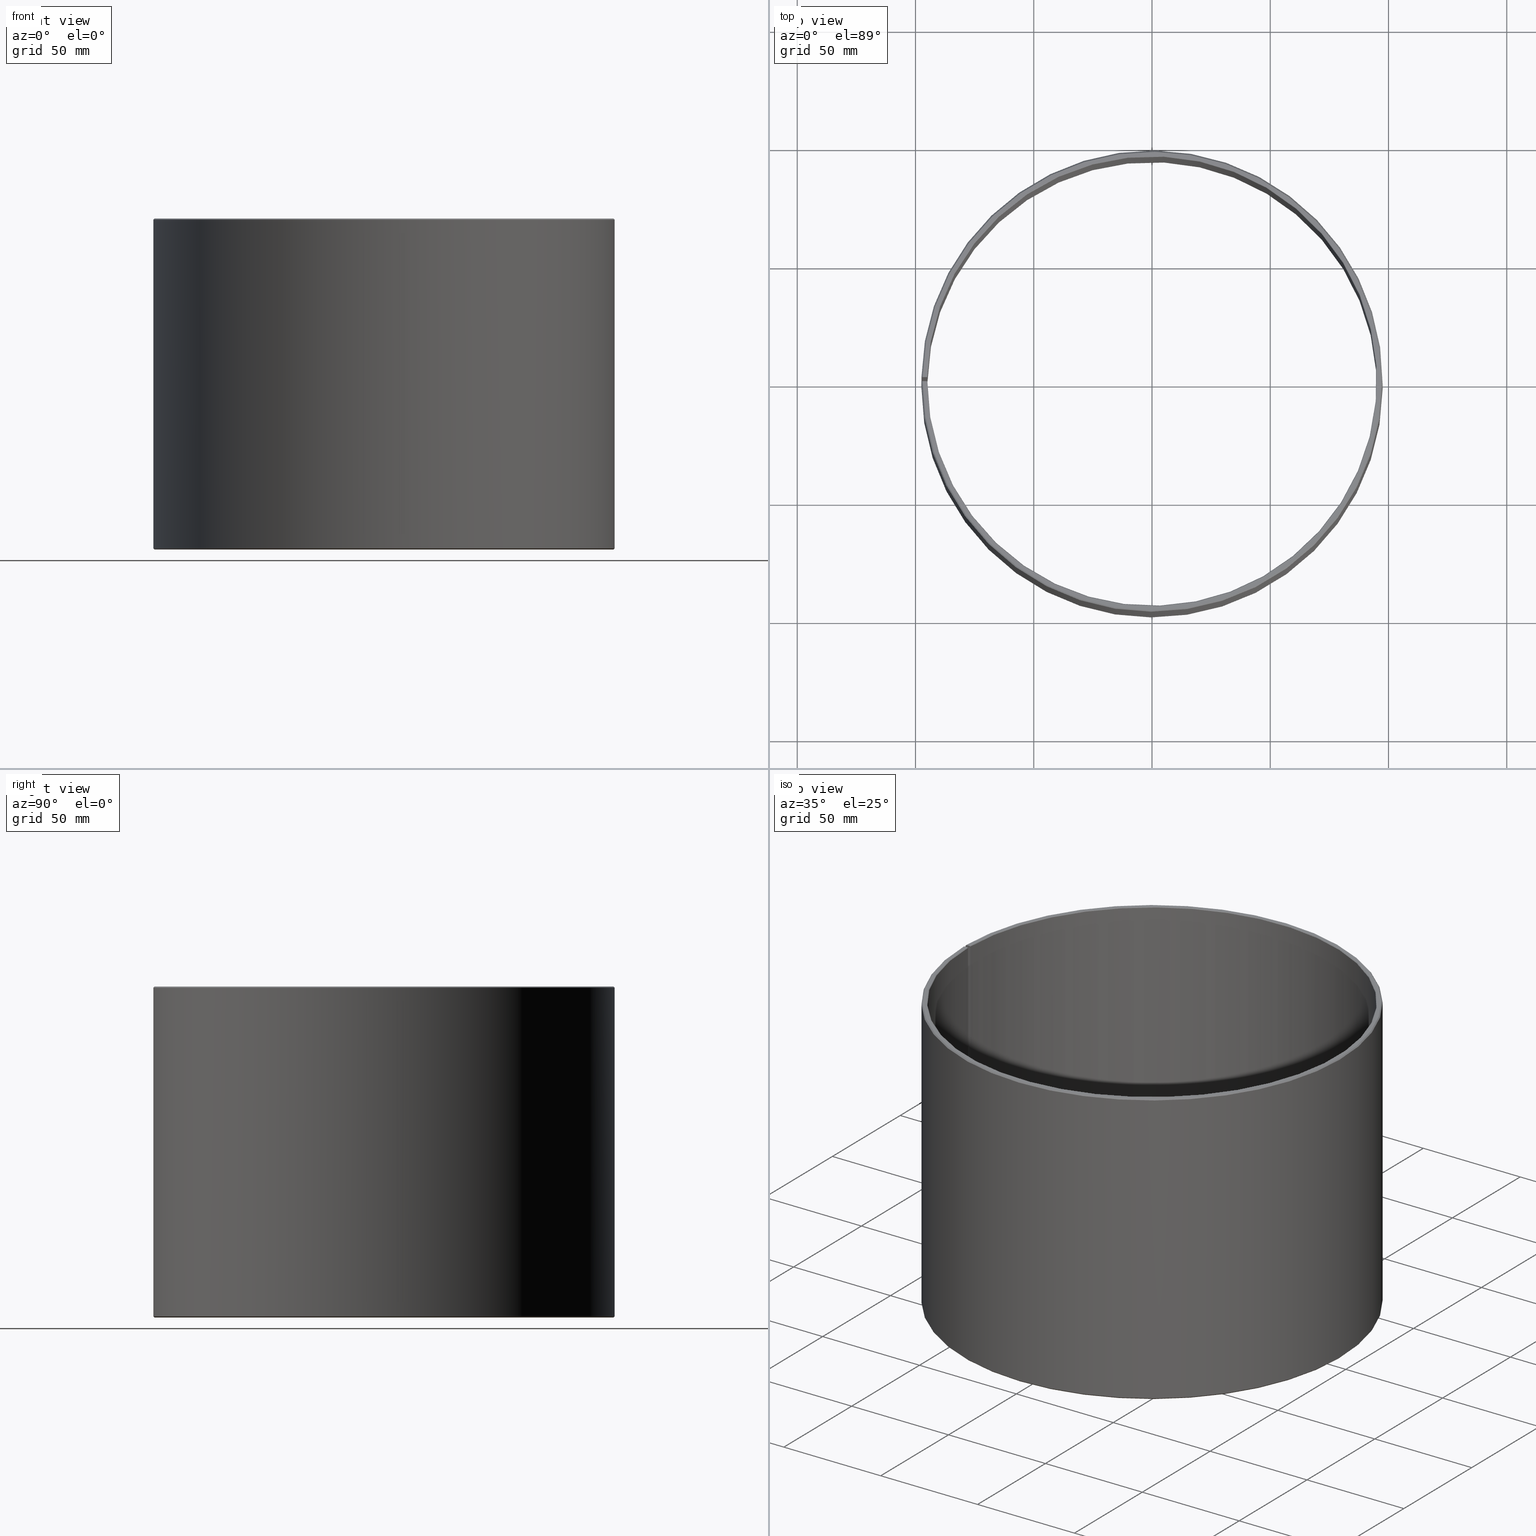
[diagram: canonical four-view strip — front | top / right | iso, engineering-drawing reading convention]
A machine part, canonical four-view strip (front | top / right | iso — engineering-drawing reading convention). The complete STEP part file that produces these views, byte-faithful:
ISO-10303-21;
HEADER;
FILE_DESCRIPTION(('STEP AP203'),'1');
FILE_NAME('470-FB090-190140.stp','2016-09-21T09:22:43',(' '),(' '),'Spatial InterOp 3D',' ',' ');
FILE_SCHEMA(('CONFIG_CONTROL_DESIGN'));
ENDSEC;
DATA;
#1=DESIGN_CONTEXT('',#51,'design');
#2=APPLICATION_PROTOCOL_DEFINITION('INTERNATIONAL STANDARD','config_control_design',1994,#51);
#3=PRODUCT_CATEGORY_RELATIONSHIP('NONE','NONE',#52,#53);
#4=DATE_AND_TIME(#54,#55);
#5=DATE_TIME_ROLE('creation_date');
#6=DATE_TIME_ROLE('classification_date');
#7=PERSON_AND_ORGANIZATION_ROLE('creator');
#8=PERSON_AND_ORGANIZATION_ROLE('design_supplier');
#9=PERSON_AND_ORGANIZATION_ROLE('classification_officer');
#10=PERSON_AND_ORGANIZATION_ROLE('design_owner');
#11=APPROVAL_PERSON_ORGANIZATION(#56,#57,#58);
#12=APPROVAL_DATE_TIME(#4,#57);
#13=CC_DESIGN_APPROVAL(#57,(#59,#60,#61));
#14=CC_DESIGN_DATE_AND_TIME_ASSIGNMENT(#4,#5,(#61));
#15=CC_DESIGN_DATE_AND_TIME_ASSIGNMENT(#4,#6,(#59));
#16=CC_DESIGN_PERSON_AND_ORGANIZATION_ASSIGNMENT(#56,#10,(#62));
#17=CC_DESIGN_PERSON_AND_ORGANIZATION_ASSIGNMENT(#56,#7,(#61));
#18=CC_DESIGN_PERSON_AND_ORGANIZATION_ASSIGNMENT(#56,#7,(#60));
#19=CC_DESIGN_PERSON_AND_ORGANIZATION_ASSIGNMENT(#56,#8,(#60));
#20=CC_DESIGN_SECURITY_CLASSIFICATION(#59,(#60));
#21=CC_DESIGN_PERSON_AND_ORGANIZATION_ASSIGNMENT(#56,#9,(#59));
#22=SHAPE_DEFINITION_REPRESENTATION(#63,#64);
#23=DESIGN_CONTEXT('',#65,'design');
#24=APPLICATION_PROTOCOL_DEFINITION('INTERNATIONAL STANDARD','config_control_design',1994,#65);
#25=PRODUCT_CATEGORY_RELATIONSHIP('NONE','NONE',#66,#67);
#26=DATE_AND_TIME(#68,#69);
#27=DATE_TIME_ROLE('creation_date');
#28=DATE_TIME_ROLE('classification_date');
#29=PERSON_AND_ORGANIZATION_ROLE('creator');
#30=PERSON_AND_ORGANIZATION_ROLE('design_supplier');
#31=PERSON_AND_ORGANIZATION_ROLE('classification_officer');
#32=PERSON_AND_ORGANIZATION_ROLE('design_owner');
#33=APPROVAL_PERSON_ORGANIZATION(#70,#71,#72);
#34=APPROVAL_DATE_TIME(#26,#71);
#35=CC_DESIGN_APPROVAL(#71,(#73,#74,#75));
#36=CC_DESIGN_DATE_AND_TIME_ASSIGNMENT(#26,#27,(#75));
#37=CC_DESIGN_DATE_AND_TIME_ASSIGNMENT(#26,#28,(#73));
#38=CC_DESIGN_PERSON_AND_ORGANIZATION_ASSIGNMENT(#70,#32,(#76));
#39=CC_DESIGN_PERSON_AND_ORGANIZATION_ASSIGNMENT(#70,#29,(#75));
#40=CC_DESIGN_PERSON_AND_ORGANIZATION_ASSIGNMENT(#70,#29,(#74));
#41=CC_DESIGN_PERSON_AND_ORGANIZATION_ASSIGNMENT(#70,#30,(#74));
#42=CC_DESIGN_SECURITY_CLASSIFICATION(#73,(#74));
#43=CC_DESIGN_PERSON_AND_ORGANIZATION_ASSIGNMENT(#70,#31,(#73));
#44=CONTEXT_DEPENDENT_SHAPE_REPRESENTATION(#77,#78);
#45=SHAPE_DEFINITION_REPRESENTATION(#79,#80);
#46=SHAPE_REPRESENTATION_RELATIONSHIP('NONE','NONE',#80,#81);
#47= (GEOMETRIC_REPRESENTATION_CONTEXT(3)GLOBAL_UNCERTAINTY_ASSIGNED_CONTEXT((#84))GLOBAL_UNIT_ASSIGNED_CONTEXT((#86,#87,#88))REPRESENTATION_CONTEXT('NONE','WORKSPACE'));
#51=APPLICATION_CONTEXT('CONFIGURATION CONTROLLED 3D DESIGNS OF MECHANICAL PARTS AND ASSEMBLIES');
#52=PRODUCT_CATEGORY('part','NONE');
#53=PRODUCT_RELATED_PRODUCT_CATEGORY('detail',' ',(#62));
#54=CALENDAR_DATE(2016,21,8);
#55=LOCAL_TIME(11,22,43.0,#90);
#56=PERSON_AND_ORGANIZATION(#91,#92);
#57=APPROVAL(#93,'SOLID MODEL');
#58=APPROVAL_ROLE('APPROVED');
#59=SECURITY_CLASSIFICATION('','',#94);
#60=PRODUCT_DEFINITION_FORMATION_WITH_SPECIFIED_SOURCE(' ','NONE',#62,.NOT_KNOWN.);
#61=PRODUCT_DEFINITION('NONE','NONE',#60,#1);
#62=PRODUCT('','','PART--DESC',(#95));
#63=PRODUCT_DEFINITION_SHAPE('NONE','NONE',#61);
#64=SHAPE_REPRESENTATION('',(#96,#97),#98);
#65=APPLICATION_CONTEXT('CONFIGURATION CONTROLLED 3D DESIGNS OF MECHANICAL PARTS AND ASSEMBLIES');
#66=PRODUCT_CATEGORY('part','NONE');
#67=PRODUCT_RELATED_PRODUCT_CATEGORY('detail',' ',(#76));
#68=CALENDAR_DATE(2016,21,8);
#69=LOCAL_TIME(11,22,43.0,#99);
#70=PERSON_AND_ORGANIZATION(#100,#101);
#71=APPROVAL(#102,'SOLID MODEL');
#72=APPROVAL_ROLE('APPROVED');
#73=SECURITY_CLASSIFICATION('','',#103);
#74=PRODUCT_DEFINITION_FORMATION_WITH_SPECIFIED_SOURCE(' ','NONE',#76,.NOT_KNOWN.);
#75=PRODUCT_DEFINITION('470-FB090-190140','470-FB090-190140',#74,#23);
#76=PRODUCT('470-FB090-190140','470-FB090-190140','PART-470-FB090-190140-DESC',(#104));
#77=(REPRESENTATION_RELATIONSHIP('','',#80,#64)REPRESENTATION_RELATIONSHIP_WITH_TRANSFORMATION(#107)SHAPE_REPRESENTATION_RELATIONSHIP());
#78=PRODUCT_DEFINITION_SHAPE('NAUO-PROD-DEF','NAUO-PROD-DEF',#109);
#79=PRODUCT_DEFINITION_SHAPE('NONE','NONE',#75);
#80=SHAPE_REPRESENTATION('470-FB090-190140',(#96),#98);
#81=ADVANCED_BREP_SHAPE_REPRESENTATION('',(#110),#47);
#84=UNCERTAINTY_MEASURE_WITH_UNIT(LENGTH_MEASURE(1.0E-006),#86,'','');
#86= (CONVERSION_BASED_UNIT('METRE',#113)LENGTH_UNIT()NAMED_UNIT(#116));
#87= (NAMED_UNIT(#118)PLANE_ANGLE_UNIT()SI_UNIT($,.RADIAN.));
#88= (NAMED_UNIT(#118)SOLID_ANGLE_UNIT()SI_UNIT($,.STERADIAN.));
#90=COORDINATED_UNIVERSAL_TIME_OFFSET(1,0,.AHEAD.);
#91=PERSON('','UNSPECIFIED',$,$,$,$);
#92=ORGANIZATION('UNSPECIFIED','UNSPECIFIED','UNSPECIFIED');
#93=APPROVAL_STATUS('approved');
#94=SECURITY_CLASSIFICATION_LEVEL('unclassified');
#95=MECHANICAL_CONTEXT('',#51,'mechanical');
#96=AXIS2_PLACEMENT_3D('',#124,#125,#126);
#97=AXIS2_PLACEMENT_3D('',#127,#128,#129);
#98= (GEOMETRIC_REPRESENTATION_CONTEXT(3)GLOBAL_UNCERTAINTY_ASSIGNED_CONTEXT((#132))GLOBAL_UNIT_ASSIGNED_CONTEXT((#134,#135,#136))REPRESENTATION_CONTEXT('NONE','WORKSPACE'));
#99=COORDINATED_UNIVERSAL_TIME_OFFSET(1,0,.AHEAD.);
#100=PERSON('','UNSPECIFIED',$,$,$,$);
#101=ORGANIZATION('UNSPECIFIED','UNSPECIFIED','UNSPECIFIED');
#102=APPROVAL_STATUS('approved');
#103=SECURITY_CLASSIFICATION_LEVEL('unclassified');
#104=MECHANICAL_CONTEXT('',#65,'mechanical');
#107=ITEM_DEFINED_TRANSFORMATION('','',#96,#97);
#109=NEXT_ASSEMBLY_USAGE_OCCURRENCE('470-FB090-190140','470-FB090-190140','470-FB090-190140',#61,#75,$);
#110=MANIFOLD_SOLID_BREP('',#138);
#113=LENGTH_MEASURE_WITH_UNIT(LENGTH_MEASURE(1.0),#139);
#116=DIMENSIONAL_EXPONENTS(1.0,0.0,0.0,0.0,0.0,0.0,0.0);
#118=DIMENSIONAL_EXPONENTS(0.0,0.0,0.0,0.0,0.0,0.0,0.0);
#124=CARTESIAN_POINT('',(0.0,0.0,0.0));
#125=DIRECTION('',(0.0,0.0,1.0));
#126=DIRECTION('',(1.0,0.0,0.0));
#127=CARTESIAN_POINT('',(0.0,0.0,0.0));
#128=DIRECTION('',(5.48707263966374E-016,-5.48707263966376E-016,1.0));
#129=DIRECTION('',(1.39349996950756E-015,1.0,5.48707263966375E-016));
#132=UNCERTAINTY_MEASURE_WITH_UNIT(LENGTH_MEASURE(1.0E-006),#134,'','');
#134= (CONVERSION_BASED_UNIT('METRE',#142)LENGTH_UNIT()NAMED_UNIT(#145));
#135= (NAMED_UNIT(#147)PLANE_ANGLE_UNIT()SI_UNIT($,.RADIAN.));
#136= (NAMED_UNIT(#147)SOLID_ANGLE_UNIT()SI_UNIT($,.STERADIAN.));
#138=CLOSED_SHELL('',(#153,#154,#155,#156,#157,#158,#159,#160,#161,#162));
#139= (NAMED_UNIT(#116)LENGTH_UNIT()SI_UNIT($,.METRE.));
#142=LENGTH_MEASURE_WITH_UNIT(LENGTH_MEASURE(1.0),#164);
#145=DIMENSIONAL_EXPONENTS(1.0,0.0,0.0,0.0,0.0,0.0,0.0);
#147=DIMENSIONAL_EXPONENTS(0.0,0.0,0.0,0.0,0.0,0.0,0.0);
#153=ADVANCED_FACE('',(#165),#166,.F.);
#154=ADVANCED_FACE('',(#167),#168,.F.);
#155=ADVANCED_FACE('',(#169),#170,.T.);
#156=ADVANCED_FACE('',(#171),#172,.T.);
#157=ADVANCED_FACE('',(#173),#174,.T.);
#158=ADVANCED_FACE('',(#175),#176,.T.);
#159=ADVANCED_FACE('',(#177),#178,.T.);
#160=ADVANCED_FACE('',(#179),#180,.F.);
#161=ADVANCED_FACE('',(#181),#182,.T.);
#162=ADVANCED_FACE('',(#183),#184,.F.);
#164= (NAMED_UNIT(#145)LENGTH_UNIT()SI_UNIT($,.METRE.));
#165=FACE_OUTER_BOUND('',#186,.T.);
#166=CYLINDRICAL_SURFACE('',#187,0.095);
#167=FACE_OUTER_BOUND('',#188,.T.);
#168=CONICAL_SURFACE('',#189,0.095,0.785398163397542);
#169=FACE_OUTER_BOUND('',#190,.T.);
#170=PLANE('',#191);
#171=FACE_OUTER_BOUND('',#192,.T.);
#172=CONICAL_SURFACE('',#193,0.097,0.785398163397459);
#173=FACE_OUTER_BOUND('',#194,.T.);
#174=CYLINDRICAL_SURFACE('',#195,0.0975);
#175=FACE_OUTER_BOUND('',#196,.T.);
#176=CONICAL_SURFACE('',#197,0.0975,0.785398163397448);
#177=FACE_OUTER_BOUND('',#198,.T.);
#178=PLANE('',#199);
#179=FACE_OUTER_BOUND('',#200,.T.);
#180=CONICAL_SURFACE('',#201,0.0952,0.785398163397448);
#181=FACE_OUTER_BOUND('',#202,.T.);
#182=PLANE('',#203);
#183=FACE_OUTER_BOUND('',#204,.T.);
#184=PLANE('',#205);
#186=EDGE_LOOP('',(#206,#207,#208,#209));
#187=AXIS2_PLACEMENT_3D('',#210,#211,#212);
#188=EDGE_LOOP('',(#213,#214,#215,#216));
#189=AXIS2_PLACEMENT_3D('',#217,#218,#219);
#190=EDGE_LOOP('',(#220,#221,#222,#223));
#191=AXIS2_PLACEMENT_3D('',#224,#225,#226);
#192=EDGE_LOOP('',(#227,#228,#229,#230));
#193=AXIS2_PLACEMENT_3D('',#231,#232,#233);
#194=EDGE_LOOP('',(#234,#235,#236,#237));
#195=AXIS2_PLACEMENT_3D('',#238,#239,#240);
#196=EDGE_LOOP('',(#241,#242,#243,#244));
#197=AXIS2_PLACEMENT_3D('',#245,#246,#247);
#198=EDGE_LOOP('',(#248,#249,#250,#251));
#199=AXIS2_PLACEMENT_3D('',#252,#253,#254);
#200=EDGE_LOOP('',(#255,#256,#257,#258));
#201=AXIS2_PLACEMENT_3D('',#259,#260,#261);
#202=EDGE_LOOP('',(#262,#263,#264,#265,#266,#267,#268,#269));
#203=AXIS2_PLACEMENT_3D('',#270,#271,#272);
#204=EDGE_LOOP('',(#273,#274,#275,#276,#277,#278,#279,#280));
#205=AXIS2_PLACEMENT_3D('',#281,#282,#283);
#206=ORIENTED_EDGE('',*,*,#284,.T.);
#207=ORIENTED_EDGE('',*,*,#285,.F.);
#208=ORIENTED_EDGE('',*,*,#286,.F.);
#209=ORIENTED_EDGE('',*,*,#287,.T.);
#210=CARTESIAN_POINT('',(-3.46944695195362E-018,-2.60208521396521E-018,-5.42101086242752E-020));
#211=DIRECTION('',(6.12323399573677E-017,0.0,-1.0));
#212=DIRECTION('',(-1.0,0.0,-6.12323399573677E-017));
#213=ORIENTED_EDGE('',*,*,#288,.T.);
#214=ORIENTED_EDGE('',*,*,#289,.F.);
#215=ORIENTED_EDGE('',*,*,#284,.F.);
#216=ORIENTED_EDGE('',*,*,#290,.T.);
#217=CARTESIAN_POINT('',(-3.46944695195362E-018,-2.60208521396521E-018,0.000200000000000006));
#218=DIRECTION('',(6.12323399573677E-017,-0.0,-1.0));
#219=DIRECTION('',(-1.0,0.0,-6.12323399573677E-017));
#220=ORIENTED_EDGE('',*,*,#291,.T.);
#221=ORIENTED_EDGE('',*,*,#292,.F.);
#222=ORIENTED_EDGE('',*,*,#288,.F.);
#223=ORIENTED_EDGE('',*,*,#293,.T.);
#224=CARTESIAN_POINT('',(0.00166146909282939,0.0951855005788885,1.01441582629678E-017));
#225=DIRECTION('',(6.12323399573677E-017,0.0,-1.0));
#226=DIRECTION('',(-1.0,0.0,-6.12323399573677E-017));
#227=ORIENTED_EDGE('',*,*,#294,.T.);
#228=ORIENTED_EDGE('',*,*,#295,.F.);
#229=ORIENTED_EDGE('',*,*,#291,.F.);
#230=ORIENTED_EDGE('',*,*,#296,.T.);
#231=CARTESIAN_POINT('',(-3.46944695195362E-018,-2.60208521396521E-018,1.01372903127395E-017));
#232=DIRECTION('',(-6.12323399573677E-017,0.0,1.0));
#233=DIRECTION('',(1.0,0.0,6.12323399573677E-017));
#234=ORIENTED_EDGE('',*,*,#297,.T.);
#235=ORIENTED_EDGE('',*,*,#298,.F.);
#236=ORIENTED_EDGE('',*,*,#294,.F.);
#237=ORIENTED_EDGE('',*,*,#299,.T.);
#238=CARTESIAN_POINT('',(-3.46944695195362E-018,-2.60208521396521E-018,-5.42101086242752E-020));
#239=DIRECTION('',(6.12323399573677E-017,0.0,-1.0));
#240=DIRECTION('',(-1.0,0.0,-6.12323399573677E-017));
#241=ORIENTED_EDGE('',*,*,#300,.T.);
#242=ORIENTED_EDGE('',*,*,#301,.F.);
#243=ORIENTED_EDGE('',*,*,#297,.F.);
#244=ORIENTED_EDGE('',*,*,#302,.T.);
#245=CARTESIAN_POINT('',(-1.21430643318376E-017,-2.60208521396521E-018,0.1395));
#246=DIRECTION('',(6.12323399573677E-017,-0.0,-1.0));
#247=DIRECTION('',(-1.0,0.0,-6.12323399573677E-017));
#248=ORIENTED_EDGE('',*,*,#303,.T.);
#249=ORIENTED_EDGE('',*,*,#304,.T.);
#250=ORIENTED_EDGE('',*,*,#305,.F.);
#251=ORIENTED_EDGE('',*,*,#300,.F.);
#252=CARTESIAN_POINT('',(0.0016928834244165,0.0969852264301699,0.14));
#253=DIRECTION('',(-6.12323399573677E-017,0.0,1.0));
#254=DIRECTION('',(1.0,0.0,6.12323399573677E-017));
#255=ORIENTED_EDGE('',*,*,#286,.T.);
#256=ORIENTED_EDGE('',*,*,#306,.F.);
#257=ORIENTED_EDGE('',*,*,#304,.F.);
#258=ORIENTED_EDGE('',*,*,#307,.T.);
#259=CARTESIAN_POINT('',(-1.21430643318376E-017,-2.60208521396521E-018,0.14));
#260=DIRECTION('',(-6.12323399573677E-017,0.0,1.0));
#261=DIRECTION('',(1.0,0.0,6.12323399573677E-017));
#262=ORIENTED_EDGE('',*,*,#306,.T.);
#263=ORIENTED_EDGE('',*,*,#285,.T.);
#264=ORIENTED_EDGE('',*,*,#289,.T.);
#265=ORIENTED_EDGE('',*,*,#292,.T.);
#266=ORIENTED_EDGE('',*,*,#295,.T.);
#267=ORIENTED_EDGE('',*,*,#298,.T.);
#268=ORIENTED_EDGE('',*,*,#301,.T.);
#269=ORIENTED_EDGE('',*,*,#305,.T.);
#270=CARTESIAN_POINT('',(-3.46944695195362E-018,-0.006,0.0));
#271=DIRECTION('',(1.0,0.0,0.0));
#272=DIRECTION('',(0.0,0.0,-1.0));
#273=ORIENTED_EDGE('',*,*,#307,.F.);
#274=ORIENTED_EDGE('',*,*,#303,.F.);
#275=ORIENTED_EDGE('',*,*,#302,.F.);
#276=ORIENTED_EDGE('',*,*,#299,.F.);
#277=ORIENTED_EDGE('',*,*,#296,.F.);
#278=ORIENTED_EDGE('',*,*,#293,.F.);
#279=ORIENTED_EDGE('',*,*,#290,.F.);
#280=ORIENTED_EDGE('',*,*,#287,.F.);
#281=CARTESIAN_POINT('',(-0.000104714438623705,-0.00599908617093836,-6.4119101042514E-021));
#282=DIRECTION('',(0.999847695156391,-0.0174524064372836,-9.3259819610035E-021));
#283=DIRECTION('',(9.32598196100733E-021,1.0686516840419E-018,-1.0));
#284=EDGE_CURVE('',#308,#309,#310,.T.);
#285=EDGE_CURVE('',#311,#309,#312,.T.);
#286=EDGE_CURVE('',#313,#311,#314,.T.);
#287=EDGE_CURVE('',#313,#308,#315,.T.);
#288=EDGE_CURVE('',#316,#317,#318,.T.);
#289=EDGE_CURVE('',#309,#317,#319,.T.);
#290=EDGE_CURVE('',#308,#316,#320,.T.);
#291=EDGE_CURVE('',#321,#322,#323,.T.);
#292=EDGE_CURVE('',#317,#322,#324,.T.);
#293=EDGE_CURVE('',#316,#321,#325,.T.);
#294=EDGE_CURVE('',#326,#327,#328,.T.);
#295=EDGE_CURVE('',#322,#327,#329,.T.);
#296=EDGE_CURVE('',#321,#326,#330,.T.);
#297=EDGE_CURVE('',#331,#332,#333,.T.);
#298=EDGE_CURVE('',#327,#332,#334,.T.);
#299=EDGE_CURVE('',#326,#331,#335,.T.);
#300=EDGE_CURVE('',#336,#337,#338,.T.);
#301=EDGE_CURVE('',#332,#337,#339,.T.);
#302=EDGE_CURVE('',#331,#336,#340,.T.);
#303=EDGE_CURVE('',#336,#341,#342,.T.);
#304=EDGE_CURVE('',#341,#343,#344,.T.);
#305=EDGE_CURVE('',#337,#343,#345,.T.);
#306=EDGE_CURVE('',#343,#311,#346,.T.);
#307=EDGE_CURVE('',#341,#313,#347,.T.);
#308=VERTEX_POINT('',#348);
#309=VERTEX_POINT('',#349);
#310=CIRCLE('',#350,0.095);
#311=VERTEX_POINT('',#351);
#312=LINE('',#352,#353);
#313=VERTEX_POINT('',#354);
#314=CIRCLE('',#355,0.095);
#315=LINE('',#356,#357);
#316=VERTEX_POINT('',#358);
#317=VERTEX_POINT('',#359);
#318=CIRCLE('',#360,0.0952);
#319=LINE('',#361,#362);
#320=LINE('',#363,#364);
#321=VERTEX_POINT('',#365);
#322=VERTEX_POINT('',#366);
#323=CIRCLE('',#367,0.097);
#324=LINE('',#368,#369);
#325=LINE('',#370,#371);
#326=VERTEX_POINT('',#372);
#327=VERTEX_POINT('',#373);
#328=CIRCLE('',#374,0.0975);
#329=LINE('',#375,#376);
#330=LINE('',#377,#378);
#331=VERTEX_POINT('',#379);
#332=VERTEX_POINT('',#380);
#333=CIRCLE('',#381,0.0975);
#334=LINE('',#382,#383);
#335=LINE('',#384,#385);
#336=VERTEX_POINT('',#386);
#337=VERTEX_POINT('',#387);
#338=CIRCLE('',#388,0.097);
#339=LINE('',#389,#390);
#340=LINE('',#391,#392);
#341=VERTEX_POINT('',#393);
#342=LINE('',#394,#395);
#343=VERTEX_POINT('',#396);
#344=CIRCLE('',#397,0.0952);
#345=LINE('',#398,#399);
#346=LINE('',#400,#401);
#347=LINE('',#402,#403);
#348=CARTESIAN_POINT('',(0.00165797861154194,0.0949855310398572,0.000200000000000006));
#349=CARTESIAN_POINT('',(-3.46944695195362E-018,0.095,0.000200000000000006));
#350=AXIS2_PLACEMENT_3D('',#404,#405,#406);
#351=CARTESIAN_POINT('',(-1.21430643318376E-017,0.095,0.1398));
#352=CARTESIAN_POINT('',(-1.21430643318376E-017,0.095,0.1398));
#353=VECTOR('',#407,1.0);
#354=CARTESIAN_POINT('',(0.00165797861154193,0.0949855310398571,0.1398));
#355=AXIS2_PLACEMENT_3D('',#408,#409,#410);
#356=CARTESIAN_POINT('',(0.00165797861154193,0.0949855310398571,0.1398));
#357=VECTOR('',#411,1.0);
#358=CARTESIAN_POINT('',(0.00166146909282939,0.0951855005788885,1.00492905728753E-017));
#359=CARTESIAN_POINT('',(-3.46944695195362E-018,0.0952,9.9475549325545E-018));
#360=AXIS2_PLACEMENT_3D('',#412,#413,#414);
#361=CARTESIAN_POINT('',(-3.46944695195362E-018,0.095,0.0002));
#362=VECTOR('',#415,1.0);
#363=CARTESIAN_POINT('',(0.00165797861154194,0.0949855310398572,0.0002));
#364=VECTOR('',#416,1.0);
#365=CARTESIAN_POINT('',(0.0016928834244165,0.09698522643017,1.02409495260915E-017));
#366=CARTESIAN_POINT('',(-3.46944695195362E-018,0.097,1.01372903127395E-017));
#367=AXIS2_PLACEMENT_3D('',#417,#418,#419);
#368=CARTESIAN_POINT('',(-3.46944695195362E-018,0.0952,9.9511542404096E-018));
#369=VECTOR('',#420,1.0);
#370=CARTESIAN_POINT('',(0.00166146909282939,0.0951855005788885,1.00528898807304E-017));
#371=VECTOR('',#421,1.0);
#372=CARTESIAN_POINT('',(0.00170160962763515,0.0974851502777482,0.0005));
#373=CARTESIAN_POINT('',(-3.46944695195362E-018,0.0975,0.0005));
#374=AXIS2_PLACEMENT_3D('',#422,#423,#424);
#375=CARTESIAN_POINT('',(-3.46944695195362E-018,0.097,1.01372903127395E-017));
#376=VECTOR('',#425,1.0);
#377=CARTESIAN_POINT('',(0.0016928834244165,0.09698522643017,1.02409495260915E-017));
#378=VECTOR('',#426,1.0);
#379=CARTESIAN_POINT('',(0.00170160962763514,0.0974851502777481,0.1395));
#380=CARTESIAN_POINT('',(-1.21430643318376E-017,0.0975,0.1395));
#381=AXIS2_PLACEMENT_3D('',#427,#428,#429);
#382=CARTESIAN_POINT('',(-3.46944695195362E-018,0.0975,0.0005));
#383=VECTOR('',#430,1.0);
#384=CARTESIAN_POINT('',(0.00170160962763515,0.0974851502777482,0.0005));
#385=VECTOR('',#431,1.0);
#386=CARTESIAN_POINT('',(0.0016928834244165,0.0969852264301699,0.14));
#387=CARTESIAN_POINT('',(-1.21430643318376E-017,0.097,0.14));
#388=AXIS2_PLACEMENT_3D('',#432,#433,#434);
#389=CARTESIAN_POINT('',(-1.21430643318376E-017,0.0975,0.1395));
#390=VECTOR('',#435,1.0);
#391=CARTESIAN_POINT('',(0.00170160962763514,0.0974851502777481,0.1395));
#392=VECTOR('',#436,1.0);
#393=CARTESIAN_POINT('',(0.00166146909282938,0.0951855005788884,0.14));
#394=CARTESIAN_POINT('',(0.0016928834244165,0.0969852264301699,0.14));
#395=VECTOR('',#437,1.0);
#396=CARTESIAN_POINT('',(-1.21430643318376E-017,0.0952,0.14));
#397=AXIS2_PLACEMENT_3D('',#438,#439,#440);
#398=CARTESIAN_POINT('',(-1.21430643318376E-017,0.097,0.14));
#399=VECTOR('',#441,1.0);
#400=CARTESIAN_POINT('',(-1.21430643318376E-017,0.0952,0.14));
#401=VECTOR('',#442,1.0);
#402=CARTESIAN_POINT('',(0.00166146909282938,0.0951855005788884,0.14));
#403=VECTOR('',#443,1.0);
#404=CARTESIAN_POINT('',(-3.46944695195362E-018,-2.60208521396521E-018,0.000200000000000006));
#405=DIRECTION('',(6.12323399573677E-017,0.0,-1.0));
#406=DIRECTION('',(-1.0,0.0,-6.12323399573677E-017));
#407=DIRECTION('',(6.21319296553298E-017,1.98822174897056E-016,-1.0));
#408=CARTESIAN_POINT('',(-1.21430643318376E-017,-2.60208521396521E-018,0.1398));
#409=DIRECTION('',(6.12323399573677E-017,0.0,-1.0));
#410=DIRECTION('',(-1.0,0.0,-6.12323399573677E-017));
#411=DIRECTION('',(6.56017180485096E-017,1.98776193311766E-016,-1.0));
#412=CARTESIAN_POINT('',(-3.46944695195362E-018,-2.60208521396521E-018,9.9475549325545E-018));
#413=DIRECTION('',(6.12323399573677E-017,0.0,-1.0));
#414=DIRECTION('',(-1.0,0.0,-6.12323399573677E-017));
#415=DIRECTION('',(0.0,0.7071067811866,-0.707106781186495));
#416=DIRECTION('',(0.0123407149398279,0.706999085398877,-0.707106781186495));
#417=CARTESIAN_POINT('',(-3.46944695195362E-018,-2.60208521396521E-018,1.01372903127395E-017));
#418=DIRECTION('',(6.12323399573677E-017,0.0,-1.0));
#419=DIRECTION('',(-1.0,0.0,-6.12323399573677E-017));
#420=DIRECTION('',(0.0,1.0,1.03408929072146E-016));
#421=DIRECTION('',(0.0174524064372836,0.999847695156391,1.04477580756188E-016));
#422=CARTESIAN_POINT('',(-3.46944695195362E-018,-2.60208521396521E-018,0.0005));
#423=DIRECTION('',(6.12323399573677E-017,0.0,-1.0));
#424=DIRECTION('',(-1.0,0.0,-6.12323399573677E-017));
#425=DIRECTION('',(0.0,0.707106781186555,0.70710678118654));
#426=DIRECTION('',(0.0123407149398271,0.706999085398831,0.70710678118654));
#427=CARTESIAN_POINT('',(-1.21430643318376E-017,-2.60208521396521E-018,0.1395));
#428=DIRECTION('',(6.12323399573677E-017,0.0,-1.0));
#429=DIRECTION('',(-1.0,0.0,-6.12323399573677E-017));
#430=DIRECTION('',(-6.24001250351369E-017,-1.99680400112438E-016,1.0));
#431=DIRECTION('',(-6.5884850676135E-017,-1.99629607160519E-016,1.0));
#432=CARTESIAN_POINT('',(-1.21430643318376E-017,-2.60208521396521E-018,0.14));
#433=DIRECTION('',(6.12323399573677E-017,0.0,-1.0));
#434=DIRECTION('',(-1.0,0.0,-6.12323399573677E-017));
#435=DIRECTION('',(0.0,-0.707106781186548,0.707106781186548));
#436=DIRECTION('',(-0.012340714939827,-0.706999085398824,0.707106781186548));
#437=DIRECTION('',(-0.0174524064372836,-0.999847695156391,-1.0686516840419E-018));
#438=CARTESIAN_POINT('',(-1.21430643318376E-017,-2.60208521396521E-018,0.14));
#439=DIRECTION('',(6.12323399573677E-017,0.0,-1.0));
#440=DIRECTION('',(-1.0,0.0,-6.12323399573677E-017));
#441=DIRECTION('',(0.0,-1.0,0.0));
#442=DIRECTION('',(0.0,-0.707106781186523,-0.707106781186572));
#443=DIRECTION('',(-0.0123407149398265,-0.7069990853988,-0.707106781186572));
ENDSEC;
END-ISO-10303-21;
